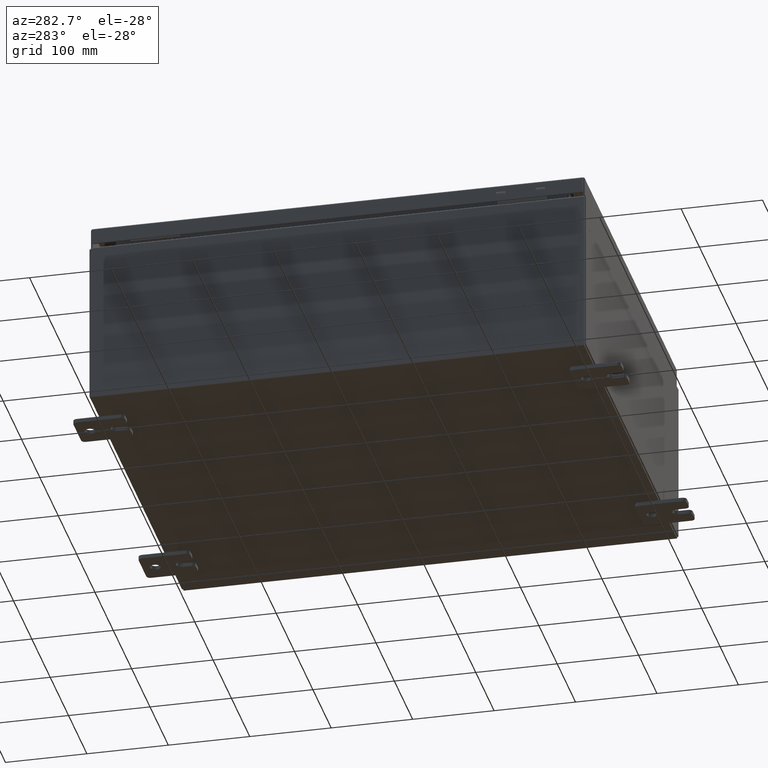
[diagram: clean part render]
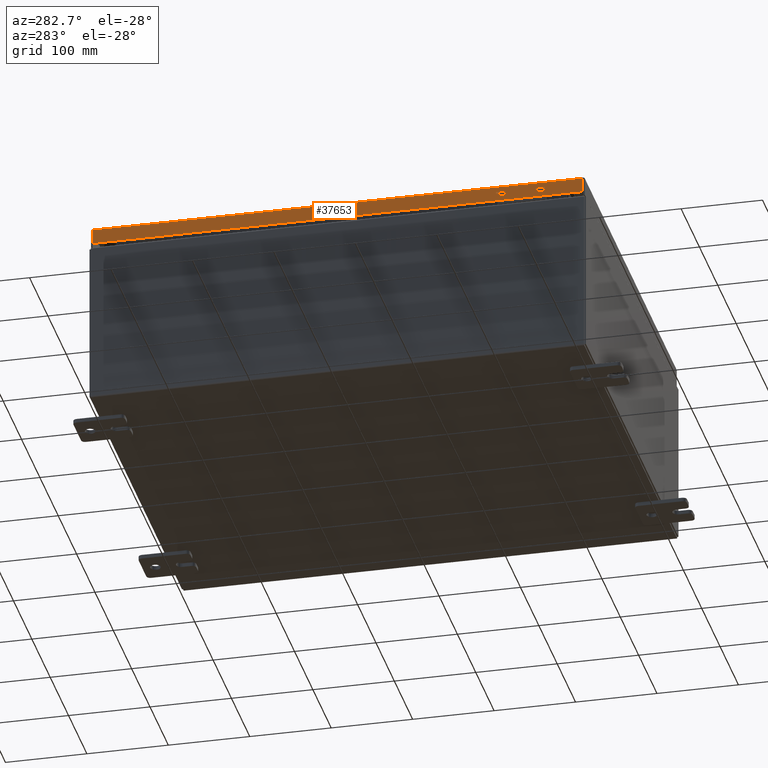
[diagram: same view with one face highlighted and labeled with its STEP entity id]
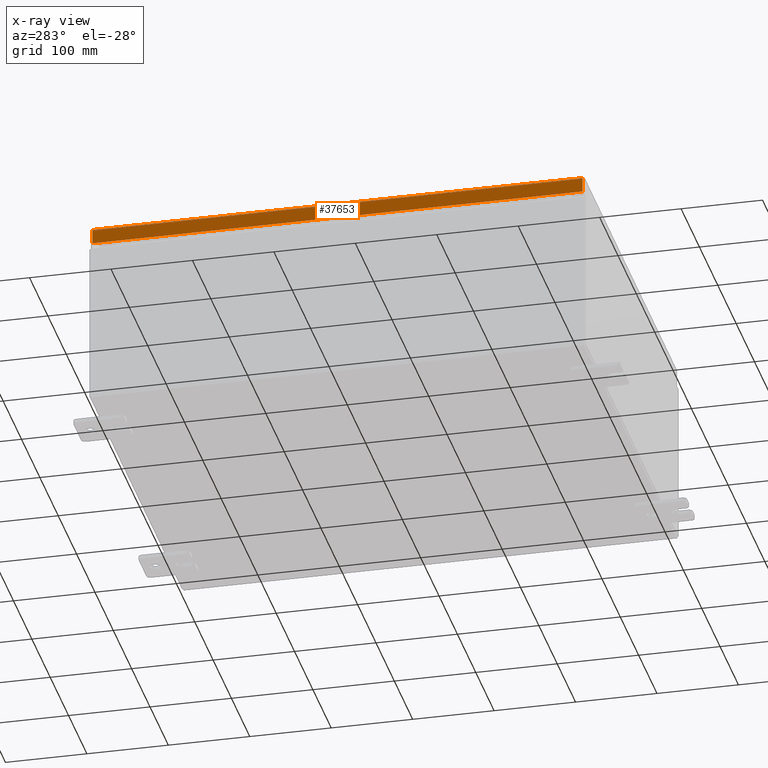
[diagram: x-ray of the same camera — body ghosted, the highlighted face saturated]
A machine part, auxiliary view. The second image highlights one B-rep face of the part: STEP entity #37653.
The next image is the same camera in x-ray: the body ghosted, the highlighted face saturated — about 0% of this face is hidden behind the body in this view.
In plain terms, the highlighted planar face has unit normal (1, 0, -0).
Its self-contained STEP definition (entity closure, byte-faithful):
#744 = VECTOR ( 'NONE', #37110, 39.37007874015748100 ) ;
#768 = LINE ( 'NONE', #51039, #23673 ) ;
#1416 = VERTEX_POINT ( 'NONE', #49059 ) ;
#2684 = VERTEX_POINT ( 'NONE', #59086 ) ;
#5450 = CARTESIAN_POINT ( 'NONE',  ( -9.937500000000003600, -11.93750000000000000, -0.7949999999999997100 ) ) ;
#6532 = DIRECTION ( 'NONE',  ( -3.034122441942816500E-015, 0.0000000000000000000, -1.000000000000000000 ) ) ;
#7724 = VERTEX_POINT ( 'NONE', #33522 ) ;
#7769 = CARTESIAN_POINT ( 'NONE',  ( -9.937500000000001800, -11.84865786437626900, -0.07469999999999976700 ) ) ;
#8489 = EDGE_CURVE ( 'NONE', #1416, #7724, #768, .T. ) ;
#9022 = ORIENTED_EDGE ( 'NONE', *, *, #42068, .T. ) ;
#9472 = ORIENTED_EDGE ( 'NONE', *, *, #57124, .F. ) ;
#10243 = VERTEX_POINT ( 'NONE', #29918 ) ;
#11342 = EDGE_LOOP ( 'NONE', ( #35040, #9022, #9472, #21895 ) ) ;
#16727 = DIRECTION ( 'NONE',  ( 3.645319108201407100E-031, -1.000000000000000000, -1.074571615456771200E-045 ) ) ;
#21895 = ORIENTED_EDGE ( 'NONE', *, *, #40214, .F. ) ;
#23673 = VECTOR ( 'NONE', #16727, 39.37007874015748100 ) ;
#24030 = CARTESIAN_POINT ( 'NONE',  ( -9.937500000000001800, 11.84865786437626900, 1.131511410704316800E-013 ) ) ;
#26764 = LINE ( 'NONE', #7769, #744 ) ;
#29918 = CARTESIAN_POINT ( 'NONE',  ( -9.937500000000003600, -11.84865786437626600, -0.7949999999999996000 ) ) ;
#30932 = PLANE ( 'NONE',  #50602 ) ;
#33522 = CARTESIAN_POINT ( 'NONE',  ( -9.937500000000001800, -11.84865786437626800, -0.08770000000000007000 ) ) ;
#35040 = ORIENTED_EDGE ( 'NONE', *, *, #8489, .F. ) ;
#35100 = LINE ( 'NONE', #24030, #61196 ) ;
#35851 = DIRECTION ( 'NONE',  ( 1.000000000000000000, 3.645319108201407100E-031, -3.034122441942816500E-015 ) ) ;
#37110 = DIRECTION ( 'NONE',  ( -3.034122441942816500E-015, 6.982962677686265900E-015, -1.000000000000000000 ) ) ;
#37653 = ADVANCED_FACE ( 'NONE', ( #61849 ), #30932, .F. ) ;
#39713 = DIRECTION ( 'NONE',  ( 4.379057701015054300E-047, 1.000000000000000000, 1.201441002449205000E-016 ) ) ;
#40214 = EDGE_CURVE ( 'NONE', #7724, #10243, #26764, .T. ) ;
#42068 = EDGE_CURVE ( 'NONE', #1416, #2684, #35100, .T. ) ;
#48528 = DIRECTION ( 'NONE',  ( -3.034122441942816500E-015, 6.982962677686265900E-015, -1.000000000000000000 ) ) ;
#49059 = CARTESIAN_POINT ( 'NONE',  ( -9.937500000000001800, 11.84865786437626800, -0.08770000000000004200 ) ) ;
#50274 = CARTESIAN_POINT ( 'NONE',  ( -9.937500000000001800, -3.622535863775148400E-030, 3.041240542281832800E-014 ) ) ;
#50602 = AXIS2_PLACEMENT_3D ( 'NONE', #50274, #35851, #6532 ) ;
#50718 = VECTOR ( 'NONE', #39713, 39.37007874015748100 ) ;
#51039 = CARTESIAN_POINT ( 'NONE',  ( -9.937500000000001800, -11.93750000000000000, -0.08770000000000004200 ) ) ;
#52228 = LINE ( 'NONE', #5450, #50718 ) ;
#57124 = EDGE_CURVE ( 'NONE', #10243, #2684, #52228, .T. ) ;
#59086 = CARTESIAN_POINT ( 'NONE',  ( -9.937500000000003600, 11.84865786437627700, -0.7949999999999968200 ) ) ;
#61196 = VECTOR ( 'NONE', #48528, 39.37007874015748100 ) ;
#61849 = FACE_OUTER_BOUND ( 'NONE', #11342, .T. ) ;